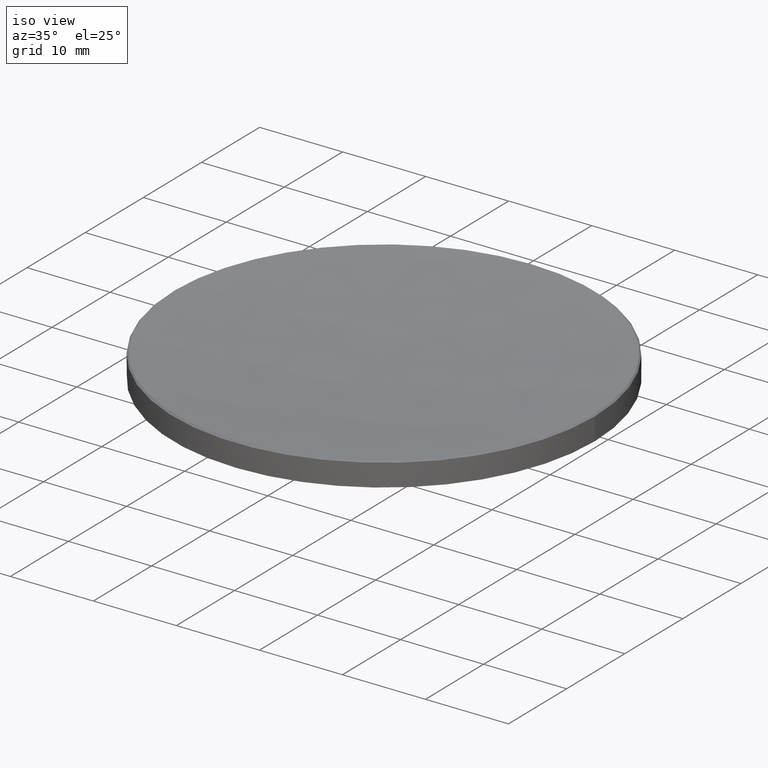
[diagram: clean part render]
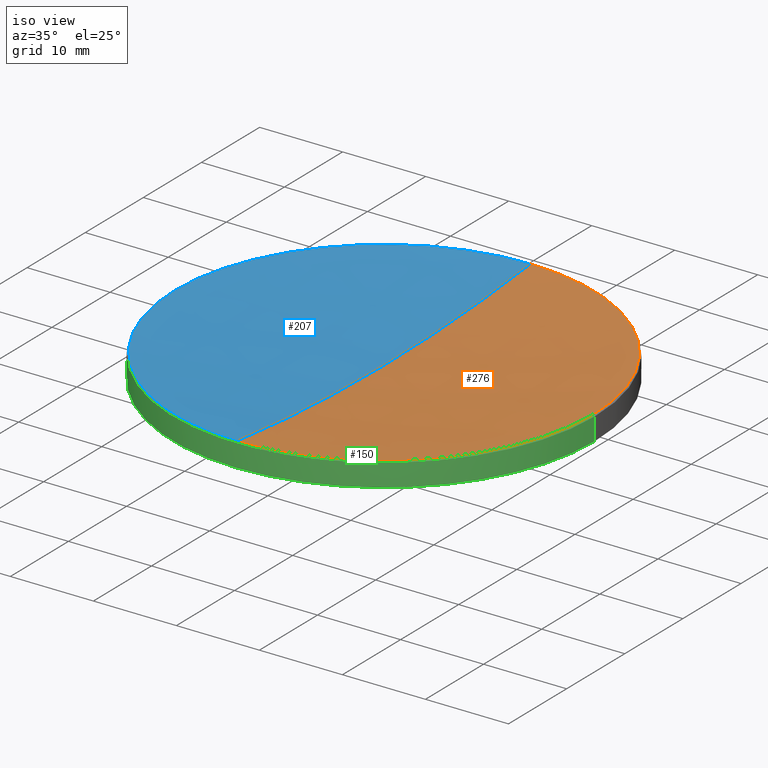
[diagram: same view with three faces highlighted in distinct colors, each labeled with its STEP entity id]
A machine part, iso view with three faces highlighted in distinct colors.
Their STEP definitions:

[orange] entity #276 — the highlighted spherical surface has radius 224.67 mm.
#3 = ORIENTED_EDGE ( 'NONE', *, *, #25, .T. ) ;
#22 = AXIS2_PLACEMENT_3D ( 'NONE', #100, #116, #59 ) ;
#24 = AXIS2_PLACEMENT_3D ( 'NONE', #56, #149, #40 ) ;
#25 = EDGE_CURVE ( 'NONE', #70, #27, #192, .T. ) ;
#27 = VERTEX_POINT ( 'NONE', #74 ) ;
#29 = VERTEX_POINT ( 'NONE', #209 ) ;
#37 = EDGE_CURVE ( 'NONE', #29, #27, #135, .T. ) ;
#40 = DIRECTION ( 'NONE',  ( 1.000000000000000000, 0.000000000000000000, 0.000000000000000000 ) ) ;
#41 = CARTESIAN_POINT ( 'NONE',  ( 0.000000000000000000, 0.000000000000000000, 239.1295878686335641 ) ) ;
#54 = CARTESIAN_POINT ( 'NONE',  ( -3.088604083155972347E-15, -25.22036627463835501, 15.87963372536149720 ) ) ;
#55 = CARTESIAN_POINT ( 'NONE',  ( 0.000000000000000000, 0.000000000000000000, 239.1295878686335641 ) ) ;
#56 = CARTESIAN_POINT ( 'NONE',  ( 0.000000000000000000, 0.000000000000000000, 15.87963372536149720 ) ) ;
#59 = DIRECTION ( 'NONE',  ( 1.000000000000000000, 0.000000000000000000, 0.000000000000000000 ) ) ;
#62 = FACE_OUTER_BOUND ( 'NONE', #108, .T. ) ;
#69 = VERTEX_POINT ( 'NONE', #54 ) ;
#70 = VERTEX_POINT ( 'NONE', #229 ) ;
#72 = AXIS2_PLACEMENT_3D ( 'NONE', #55, #232, #186 ) ;
#74 = CARTESIAN_POINT ( 'NONE',  ( 0.000000000000000000, 25.22036627463835501, 15.87963372536149720 ) ) ;
#100 = CARTESIAN_POINT ( 'NONE',  ( 0.000000000000000000, 0.000000000000000000, 15.87963372536149720 ) ) ;
#108 = EDGE_LOOP ( 'NONE', ( #205, #200, #109, #3 ) ) ;
#109 = ORIENTED_EDGE ( 'NONE', *, *, #164, .T. ) ;
#116 = DIRECTION ( 'NONE',  ( -0.000000000000000000, -0.000000000000000000, 1.000000000000000000 ) ) ;
#118 = CARTESIAN_POINT ( 'NONE',  ( 0.000000000000000000, 0.000000000000000000, 239.1295878686335641 ) ) ;
#126 = DIRECTION ( 'NONE',  ( -1.000000000000000000, 1.224646799147353207E-16, 0.000000000000000000 ) ) ;
#135 = CIRCLE ( 'NONE', #213, 224.6699999999999875 ) ;
#149 = DIRECTION ( 'NONE',  ( -0.000000000000000000, -0.000000000000000000, 1.000000000000000000 ) ) ;
#160 = DIRECTION ( 'NONE',  ( 1.000000000000000000, 0.000000000000000000, 0.000000000000000000 ) ) ;
#163 = SPHERICAL_SURFACE ( 'NONE', #72, 224.6699999999999875 ) ;
#164 = EDGE_CURVE ( 'NONE', #69, #70, #268, .T. ) ;
#181 = AXIS2_PLACEMENT_3D ( 'NONE', #41, #126, #216 ) ;
#186 = DIRECTION ( 'NONE',  ( 0.000000000000000000, 1.000000000000000000, 0.000000000000000000 ) ) ;
#192 = CIRCLE ( 'NONE', #22, 25.22036627463847935 ) ;
#200 = ORIENTED_EDGE ( 'NONE', *, *, #218, .T. ) ;
#205 = ORIENTED_EDGE ( 'NONE', *, *, #37, .F. ) ;
#206 = CIRCLE ( 'NONE', #181, 224.6699999999999875 ) ;
#208 = DIRECTION ( 'NONE',  ( 0.000000000000000000, 0.000000000000000000, -1.000000000000000000 ) ) ;
#209 = CARTESIAN_POINT ( 'NONE',  ( 0.000000000000000000, 1.375706981822179092E-14, 14.45958786863357837 ) ) ;
#213 = AXIS2_PLACEMENT_3D ( 'NONE', #118, #160, #208 ) ;
#216 = DIRECTION ( 'NONE',  ( -1.224646799147353207E-16, -1.000000000000000000, 0.000000000000000000 ) ) ;
#218 = EDGE_CURVE ( 'NONE', #29, #69, #206, .T. ) ;
#229 = CARTESIAN_POINT ( 'NONE',  ( 25.22036627463847935, 3.099603476495131903E-15, 15.87963372536149720 ) ) ;
#232 = DIRECTION ( 'NONE',  ( -1.000000000000000000, 0.000000000000000000, 0.000000000000000000 ) ) ;
#268 = CIRCLE ( 'NONE', #24, 25.22036627463847935 ) ;
#276 = ADVANCED_FACE ( 'NONE', ( #62 ), #163, .F. ) ;

[blue] entity #207 — the highlighted spherical surface has radius 224.67 mm.
#7 = VERTEX_POINT ( 'NONE', #155 ) ;
#8 = DIRECTION ( 'NONE',  ( -0.000000000000000000, -0.000000000000000000, 1.000000000000000000 ) ) ;
#16 = DIRECTION ( 'NONE',  ( 1.000000000000000000, 0.000000000000000000, 0.000000000000000000 ) ) ;
#26 = ORIENTED_EDGE ( 'NONE', *, *, #101, .T. ) ;
#27 = VERTEX_POINT ( 'NONE', #74 ) ;
#29 = VERTEX_POINT ( 'NONE', #209 ) ;
#37 = EDGE_CURVE ( 'NONE', #29, #27, #135, .T. ) ;
#41 = CARTESIAN_POINT ( 'NONE',  ( 0.000000000000000000, 0.000000000000000000, 239.1295878686335641 ) ) ;
#54 = CARTESIAN_POINT ( 'NONE',  ( -3.088604083155972347E-15, -25.22036627463835501, 15.87963372536149720 ) ) ;
#58 = CIRCLE ( 'NONE', #171, 25.22036627463847935 ) ;
#65 = DIRECTION ( 'NONE',  ( -1.000000000000000000, 0.000000000000000000, 0.000000000000000000 ) ) ;
#68 = ORIENTED_EDGE ( 'NONE', *, *, #218, .F. ) ;
#69 = VERTEX_POINT ( 'NONE', #54 ) ;
#74 = CARTESIAN_POINT ( 'NONE',  ( 0.000000000000000000, 25.22036627463835501, 15.87963372536149720 ) ) ;
#83 = SPHERICAL_SURFACE ( 'NONE', #146, 224.6699999999999875 ) ;
#89 = ORIENTED_EDGE ( 'NONE', *, *, #37, .T. ) ;
#101 = EDGE_CURVE ( 'NONE', #27, #7, #281, .T. ) ;
#110 = EDGE_CURVE ( 'NONE', #7, #69, #58, .T. ) ;
#118 = CARTESIAN_POINT ( 'NONE',  ( 0.000000000000000000, 0.000000000000000000, 239.1295878686335641 ) ) ;
#126 = DIRECTION ( 'NONE',  ( -1.000000000000000000, 1.224646799147353207E-16, 0.000000000000000000 ) ) ;
#135 = CIRCLE ( 'NONE', #213, 224.6699999999999875 ) ;
#139 = DIRECTION ( 'NONE',  ( 1.000000000000000000, 0.000000000000000000, 0.000000000000000000 ) ) ;
#146 = AXIS2_PLACEMENT_3D ( 'NONE', #148, #65, #237 ) ;
#148 = CARTESIAN_POINT ( 'NONE',  ( 0.000000000000000000, 0.000000000000000000, 239.1295878686335641 ) ) ;
#155 = CARTESIAN_POINT ( 'NONE',  ( -25.22036627463847935, 0.000000000000000000, 15.87963372536149720 ) ) ;
#156 = EDGE_LOOP ( 'NONE', ( #68, #89, #26, #182 ) ) ;
#157 = AXIS2_PLACEMENT_3D ( 'NONE', #249, #8, #16 ) ;
#160 = DIRECTION ( 'NONE',  ( 1.000000000000000000, 0.000000000000000000, 0.000000000000000000 ) ) ;
#171 = AXIS2_PLACEMENT_3D ( 'NONE', #231, #254, #139 ) ;
#181 = AXIS2_PLACEMENT_3D ( 'NONE', #41, #126, #216 ) ;
#182 = ORIENTED_EDGE ( 'NONE', *, *, #110, .T. ) ;
#206 = CIRCLE ( 'NONE', #181, 224.6699999999999875 ) ;
#207 = ADVANCED_FACE ( 'NONE', ( #280 ), #83, .F. ) ;
#208 = DIRECTION ( 'NONE',  ( 0.000000000000000000, 0.000000000000000000, -1.000000000000000000 ) ) ;
#209 = CARTESIAN_POINT ( 'NONE',  ( 0.000000000000000000, 1.375706981822179092E-14, 14.45958786863357837 ) ) ;
#213 = AXIS2_PLACEMENT_3D ( 'NONE', #118, #160, #208 ) ;
#216 = DIRECTION ( 'NONE',  ( -1.224646799147353207E-16, -1.000000000000000000, 0.000000000000000000 ) ) ;
#218 = EDGE_CURVE ( 'NONE', #29, #69, #206, .T. ) ;
#231 = CARTESIAN_POINT ( 'NONE',  ( 0.000000000000000000, 0.000000000000000000, 15.87963372536149720 ) ) ;
#237 = DIRECTION ( 'NONE',  ( 0.000000000000000000, 1.000000000000000000, 0.000000000000000000 ) ) ;
#249 = CARTESIAN_POINT ( 'NONE',  ( 0.000000000000000000, 0.000000000000000000, 15.87963372536149720 ) ) ;
#254 = DIRECTION ( 'NONE',  ( -0.000000000000000000, -0.000000000000000000, 1.000000000000000000 ) ) ;
#280 = FACE_OUTER_BOUND ( 'NONE', #156, .T. ) ;
#281 = CIRCLE ( 'NONE', #157, 25.22036627463847935 ) ;

[green] entity #150 — the highlighted cylindrical surface (partial cylindrical patch) has radius 25.4 mm, axis along (-0, -0, -1).
#10 = CARTESIAN_POINT ( 'NONE',  ( 0.000000000000000000, 0.000000000000000000, 13.00000000000000000 ) ) ;
#12 = DIRECTION ( 'NONE',  ( -0.000000000000000000, -0.000000000000000000, 1.000000000000000000 ) ) ;
#14 = EDGE_CURVE ( 'NONE', #178, #265, #91, .T. ) ;
#19 = VECTOR ( 'NONE', #121, 1000.000000000000000 ) ;
#30 = DIRECTION ( 'NONE',  ( 0.000000000000000000, 0.000000000000000000, -1.000000000000000000 ) ) ;
#31 = DIRECTION ( 'NONE',  ( 1.000000000000000000, 0.000000000000000000, 0.000000000000000000 ) ) ;
#44 = AXIS2_PLACEMENT_3D ( 'NONE', #226, #30, #75 ) ;
#46 = VECTOR ( 'NONE', #63, 1000.000000000000000 ) ;
#47 = ORIENTED_EDGE ( 'NONE', *, *, #183, .T. ) ;
#50 = AXIS2_PLACEMENT_3D ( 'NONE', #10, #12, #31 ) ;
#51 = EDGE_CURVE ( 'NONE', #270, #88, #197, .T. ) ;
#53 = CARTESIAN_POINT ( 'NONE',  ( -25.39999999999999503, 0.000000000000000000, 13.00000000000000000 ) ) ;
#63 = DIRECTION ( 'NONE',  ( -0.000000000000000000, -0.000000000000000000, -1.000000000000000000 ) ) ;
#75 = DIRECTION ( 'NONE',  ( 1.000000000000000000, 0.000000000000000000, 0.000000000000000000 ) ) ;
#77 = CARTESIAN_POINT ( 'NONE',  ( 0.000000000000000000, 0.000000000000000000, 20.00000000000000000 ) ) ;
#82 = EDGE_CURVE ( 'NONE', #129, #270, #204, .T. ) ;
#88 = VERTEX_POINT ( 'NONE', #96 ) ;
#90 = ORIENTED_EDGE ( 'NONE', *, *, #266, .F. ) ;
#91 = CIRCLE ( 'NONE', #44, 25.39999999999999858 ) ;
#96 = CARTESIAN_POINT ( 'NONE',  ( 25.39999999999999503, 3.110602869834276471E-15, 13.00000000000000000 ) ) ;
#111 = ORIENTED_EDGE ( 'NONE', *, *, #51, .T. ) ;
#120 = DIRECTION ( 'NONE',  ( -0.000000000000000000, -0.000000000000000000, -1.000000000000000000 ) ) ;
#121 = DIRECTION ( 'NONE',  ( -0.000000000000000000, -0.000000000000000000, -1.000000000000000000 ) ) ;
#125 = AXIS2_PLACEMENT_3D ( 'NONE', #168, #212, #158 ) ;
#129 = VERTEX_POINT ( 'NONE', #53 ) ;
#131 = ORIENTED_EDGE ( 'NONE', *, *, #14, .T. ) ;
#136 = DIRECTION ( 'NONE',  ( -1.000000000000000000, 0.000000000000000000, 0.000000000000000000 ) ) ;
#143 = CARTESIAN_POINT ( 'NONE',  ( -25.39999999999999858, 0.000000000000000000, 15.69999999999996376 ) ) ;
#150 = ADVANCED_FACE ( 'NONE', ( #189 ), #274, .T. ) ;
#158 = DIRECTION ( 'NONE',  ( 1.000000000000000000, 0.000000000000000000, 0.000000000000000000 ) ) ;
#167 = CARTESIAN_POINT ( 'NONE',  ( 25.39999999999999858, 3.110602869834276865E-15, 20.00000000000000000 ) ) ;
#168 = CARTESIAN_POINT ( 'NONE',  ( 0.000000000000000000, 0.000000000000000000, 13.00000000000000000 ) ) ;
#172 = LINE ( 'NONE', #214, #46 ) ;
#178 = VERTEX_POINT ( 'NONE', #235 ) ;
#183 = EDGE_CURVE ( 'NONE', #265, #129, #172, .T. ) ;
#189 = FACE_OUTER_BOUND ( 'NONE', #199, .T. ) ;
#190 = CARTESIAN_POINT ( 'NONE',  ( -3.110602869834276076E-15, -25.39999999999999147, 12.99999999999999822 ) ) ;
#194 = LINE ( 'NONE', #167, #19 ) ;
#197 = CIRCLE ( 'NONE', #50, 25.39999999999999503 ) ;
#199 = EDGE_LOOP ( 'NONE', ( #90, #131, #47, #224, #111 ) ) ;
#204 = CIRCLE ( 'NONE', #125, 25.39999999999999503 ) ;
#212 = DIRECTION ( 'NONE',  ( -0.000000000000000000, -0.000000000000000000, 1.000000000000000000 ) ) ;
#214 = CARTESIAN_POINT ( 'NONE',  ( -25.39999999999999858, 0.000000000000000000, 20.00000000000000000 ) ) ;
#222 = AXIS2_PLACEMENT_3D ( 'NONE', #77, #120, #136 ) ;
#224 = ORIENTED_EDGE ( 'NONE', *, *, #82, .T. ) ;
#226 = CARTESIAN_POINT ( 'NONE',  ( 0.000000000000000000, 0.000000000000000000, 15.69999999999996376 ) ) ;
#235 = CARTESIAN_POINT ( 'NONE',  ( 25.39999999999999858, 3.110602869834276865E-15, 15.69999999999996376 ) ) ;
#265 = VERTEX_POINT ( 'NONE', #143 ) ;
#266 = EDGE_CURVE ( 'NONE', #178, #88, #194, .T. ) ;
#270 = VERTEX_POINT ( 'NONE', #190 ) ;
#274 = CYLINDRICAL_SURFACE ( 'NONE', #222, 25.39999999999999858 ) ;